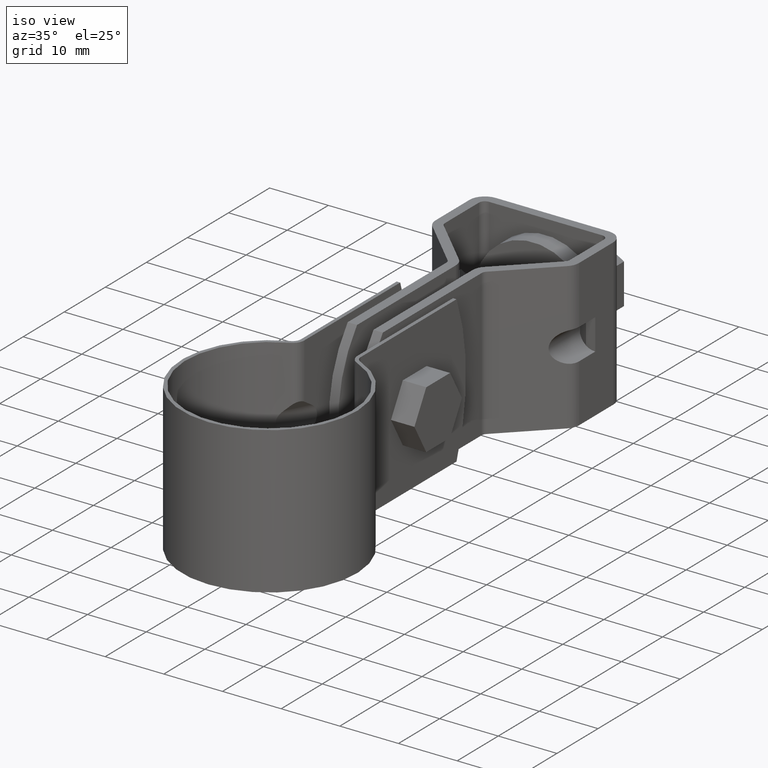
[diagram: clean part render]
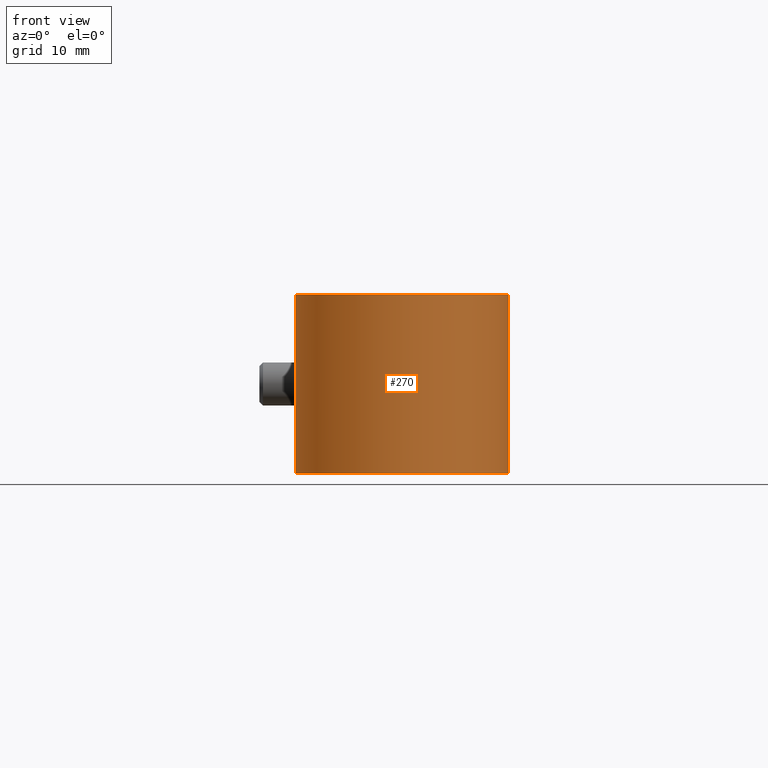
[diagram: tour spotlight — one face highlighted and labeled with its STEP entity id]
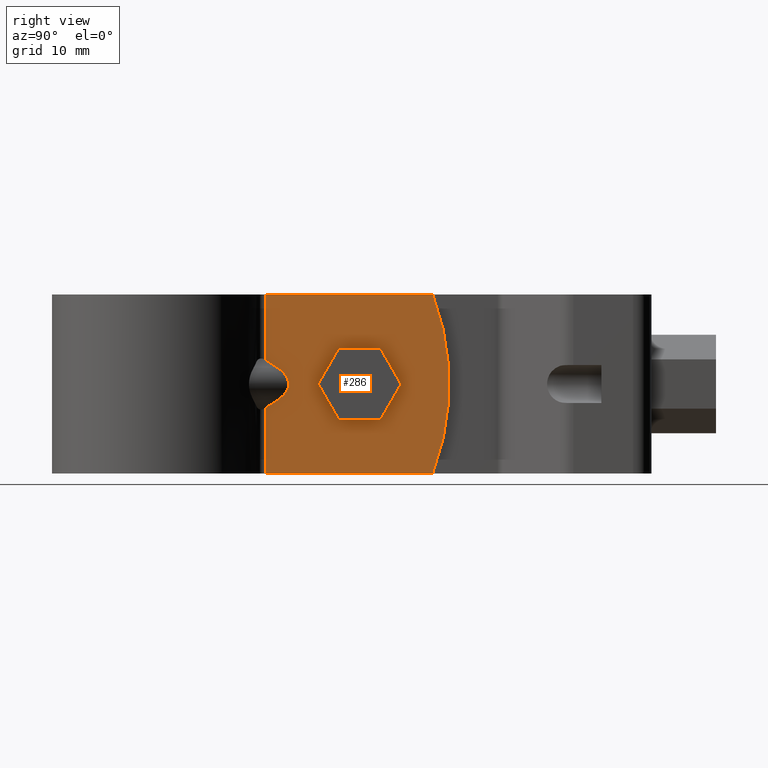
[diagram: tour spotlight — one face highlighted and labeled with its STEP entity id]
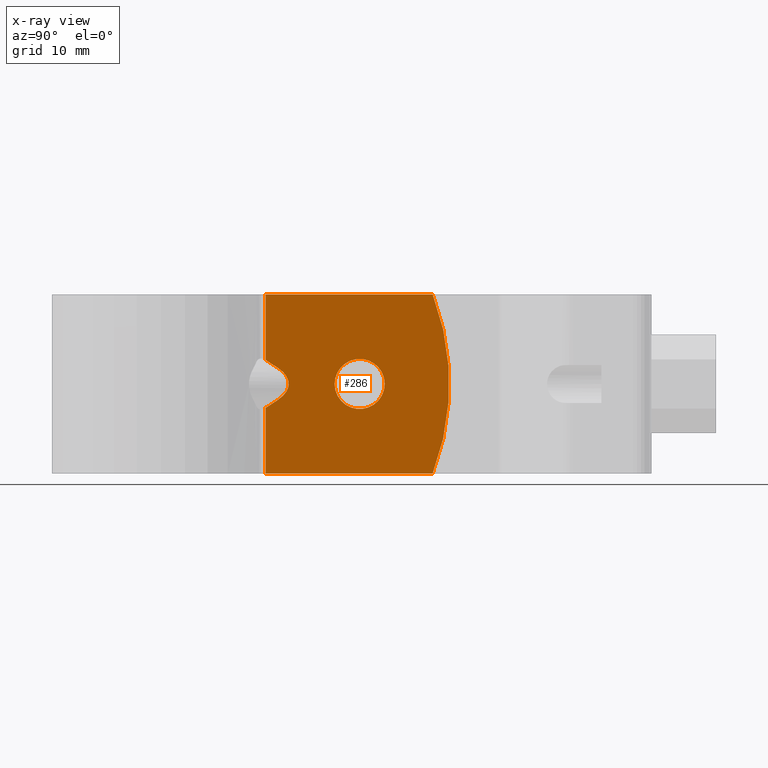
[diagram: x-ray of the same camera — body ghosted, this tour face saturated]
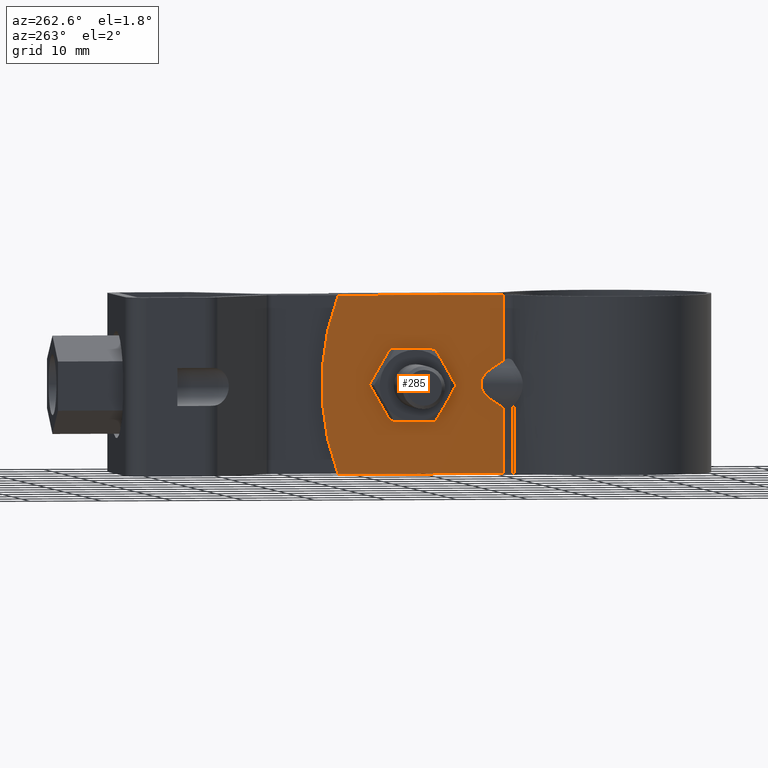
[diagram: tour spotlight — one face highlighted and labeled with its STEP entity id]
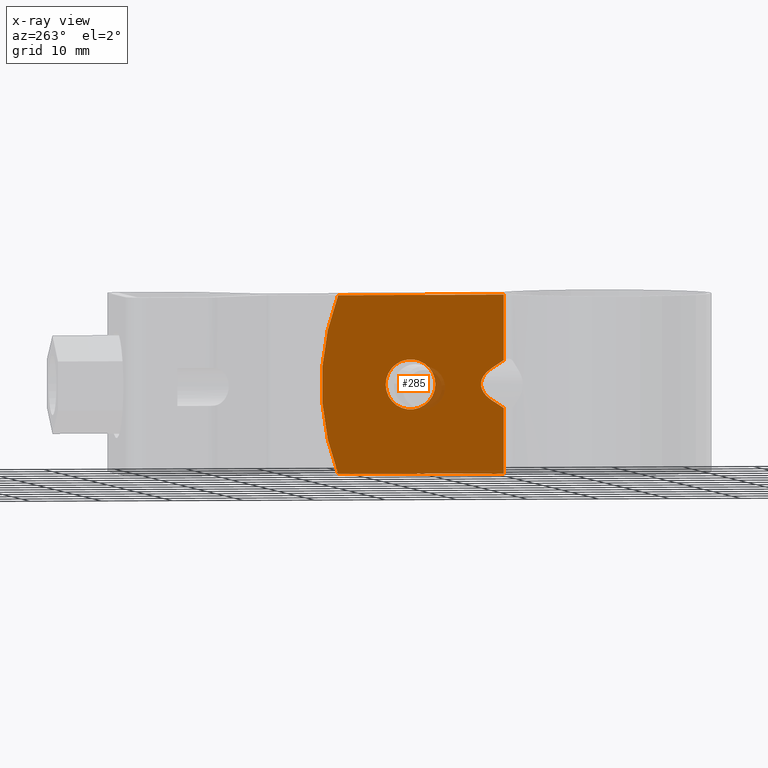
[diagram: x-ray of the same camera — body ghosted, this tour face saturated]
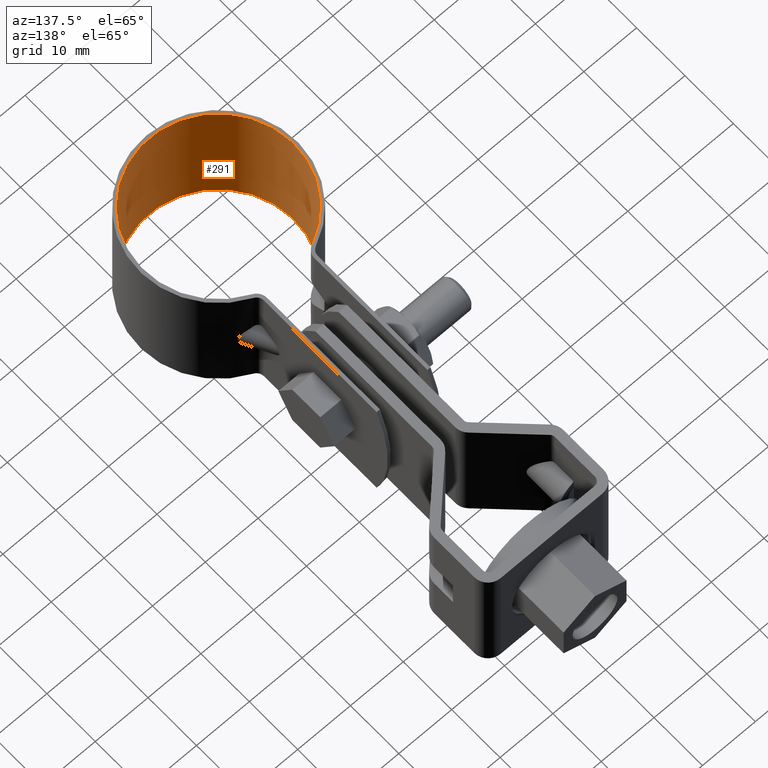
[diagram: tour spotlight — one face highlighted and labeled with its STEP entity id]
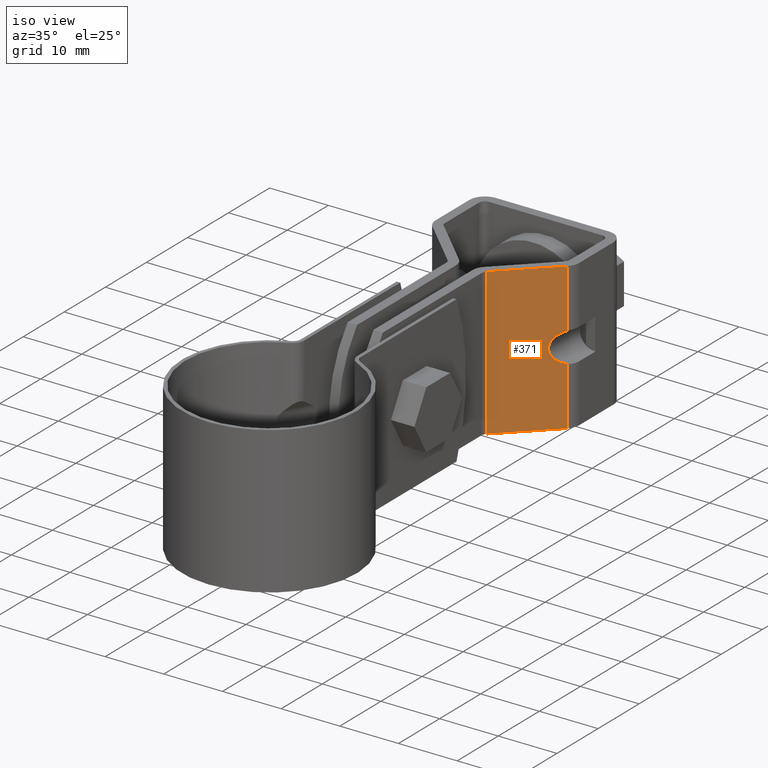
[diagram: tour spotlight — one face highlighted and labeled with its STEP entity id]
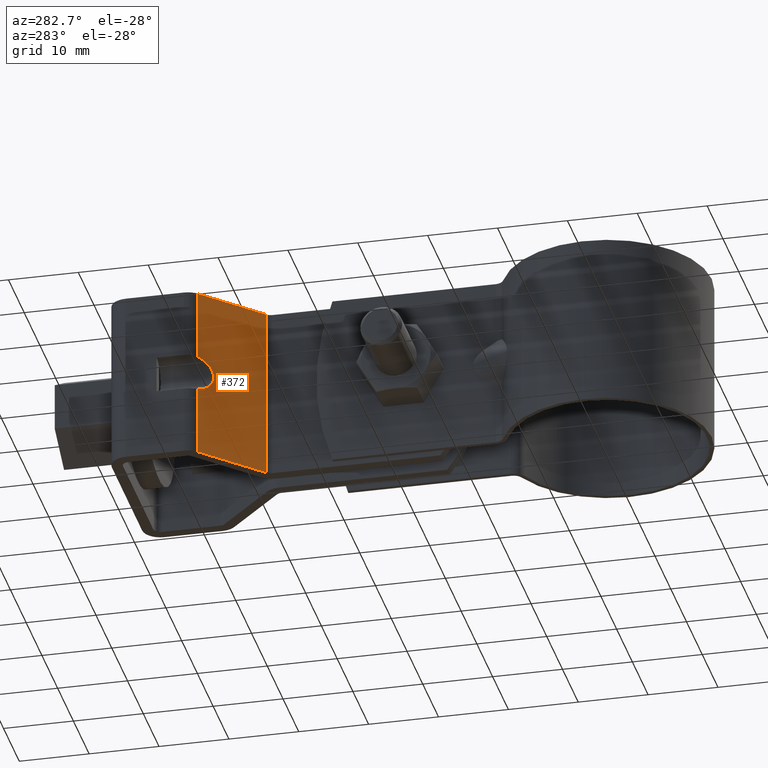
[diagram: tour spotlight — one face highlighted and labeled with its STEP entity id]
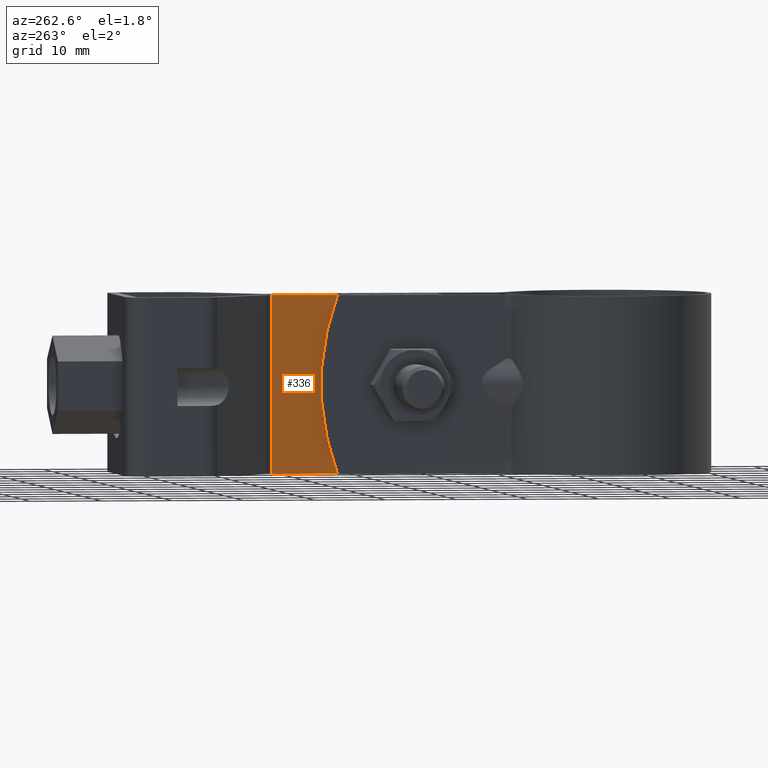
[diagram: tour spotlight — one face highlighted and labeled with its STEP entity id]
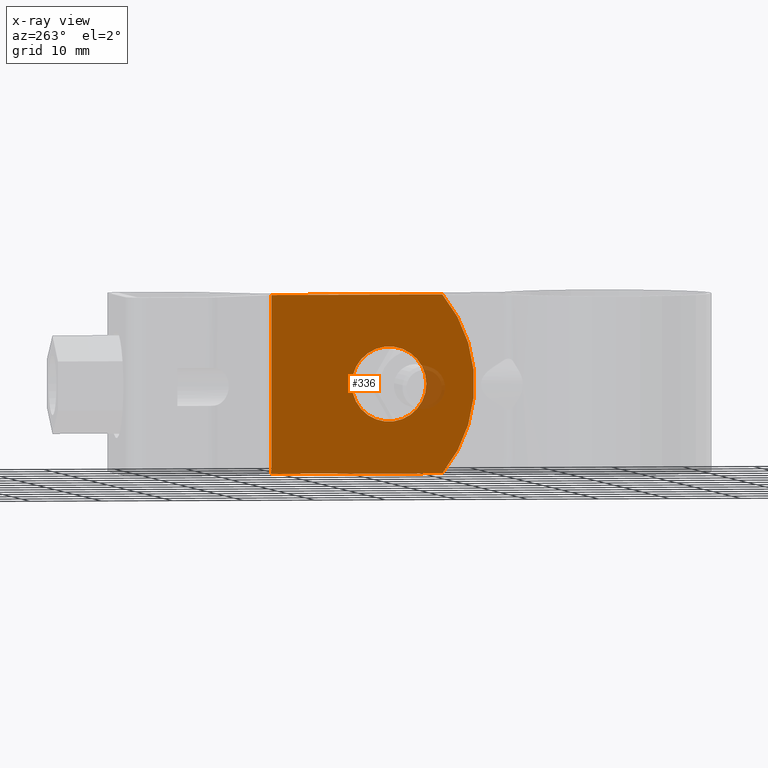
[diagram: x-ray of the same camera — body ghosted, this tour face saturated]
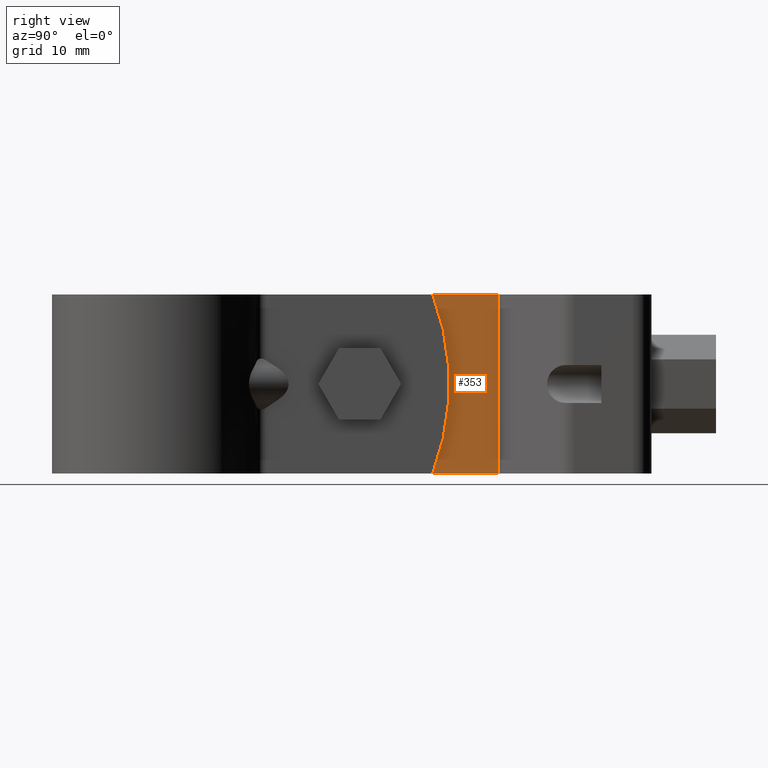
[diagram: tour spotlight — one face highlighted and labeled with its STEP entity id]
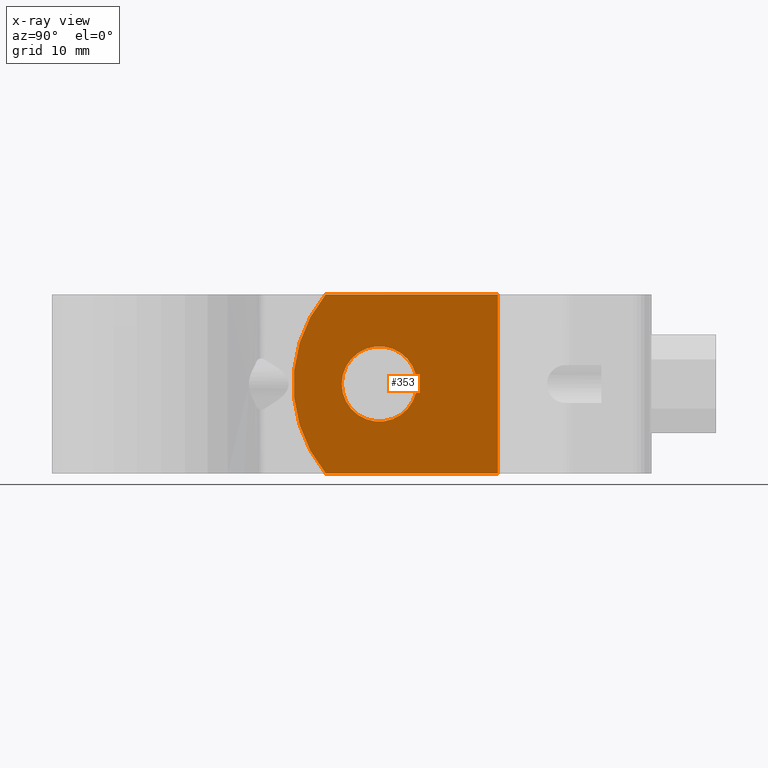
[diagram: x-ray of the same camera — body ghosted, this tour face saturated]
A machine part: a face-by-face anatomy tour. The part has 122 B-rep faces; the first image is the clean iso view, then the 8 largest visible faces are spotlighted one at a time (largest first), each with its STEP entity span.

Face 1 — front view, entity #270. In plain terms, the highlighted cylindrical surface (partial cylindrical patch) has radius 14.89 mm, axis along (0, 0, -1).
Definition (entity closure, byte-faithful):
#270 = ADVANCED_FACE( '', ( #396 ), #397, .T. );
#396 = FACE_OUTER_BOUND( '', #668, .T. );
#397 = CYLINDRICAL_SURFACE( '', #669, 14.8900000000000 );
#668 = EDGE_LOOP( '', ( #963, #964, #965, #966, #967, #968, #969, #970, #971, #972, #973, #974 ) );
#669 = AXIS2_PLACEMENT_3D( '', #975, #976, #977 );
#963 = ORIENTED_EDGE( '', *, *, #1953, .F. );
#964 = ORIENTED_EDGE( '', *, *, #1952, .T. );
#965 = ORIENTED_EDGE( '', *, *, #1954, .F. );
#966 = ORIENTED_EDGE( '', *, *, #1955, .F. );
#967 = ORIENTED_EDGE( '', *, *, #1956, .F. );
#968 = ORIENTED_EDGE( '', *, *, #1957, .F. );
#969 = ORIENTED_EDGE( '', *, *, #1958, .F. );
#970 = ORIENTED_EDGE( '', *, *, #1959, .F. );
#971 = ORIENTED_EDGE( '', *, *, #1941, .T. );
#972 = ORIENTED_EDGE( '', *, *, #1960, .T. );
#973 = ORIENTED_EDGE( '', *, *, #1961, .F. );
#974 = ORIENTED_EDGE( '', *, *, #1962, .F. );
#975 = CARTESIAN_POINT( '', ( 0.000000000000000, 0.000000000000000, -12.5000000000000 ) );
#976 = DIRECTION( '', ( 0.000000000000000, 0.000000000000000, -1.00000000000000 ) );
#977 = DIRECTION( '', ( -1.00000000000000, 6.06692130572647E-017, 0.000000000000000 ) );
#1941 = EDGE_CURVE( '', #2266, #2264, #2267, .T. );
#1952 = EDGE_CURVE( '', #2281, #2285, #2287, .T. );
#1953 = EDGE_CURVE( '', #2281, #2288, #2289, .F. );
#1954 = EDGE_CURVE( '', #2290, #2285, #2291, .T. );
#1955 = EDGE_CURVE( '', #2292, #2290, #2293, .T. );
#1956 = EDGE_CURVE( '', #2294, #2292, #2295, .F. );
#1957 = EDGE_CURVE( '', #2296, #2294, #2297, .T. );
#1958 = EDGE_CURVE( '', #2298, #2296, #2299, .F. );
#1959 = EDGE_CURVE( '', #2266, #2298, #2300, .T. );
#1960 = EDGE_CURVE( '', #2264, #2301, #2302, .T. );
#1961 = EDGE_CURVE( '', #2303, #2301, #2304, .F. );
#1962 = EDGE_CURVE( '', #2288, #2303, #2305, .T. );
#2264 = VERTEX_POINT( '', #2800 );
#2266 = VERTEX_POINT( '', #2802 );
#2267 = CIRCLE( '', #2803, 14.8900000000000 );
#2281 = VERTEX_POINT( '', #2821 );
#2285 = VERTEX_POINT( '', #2826 );
#2287 = LINE( '', #2828, #2829 );
#2288 = VERTEX_POINT( '', #2830 );
#2289 = ELLIPSE( '', #2831, 25.9599227867982, 14.8900000000000 );
#2290 = VERTEX_POINT( '', #2832 );
#2291 = CIRCLE( '', #2833, 14.8900000000000 );
#2292 = VERTEX_POINT( '', #2834 );
#2293 = LINE( '', #2835, #2836 );
#2294 = VERTEX_POINT( '', #2837 );
#2295 = ELLIPSE( '', #2838, 25.9599227867982, 14.8900000000000 );
#2296 = VERTEX_POINT( '', #2839 );
#2297 = B_SPLINE_CURVE_WITH_KNOTS( '', 3, ( #2840, #2841, #2842, #2843, #2844, #2845, #2846, #2847, #2848, #2849, #2850, #2851, #2852, #2853, #2854, #2855, #2856, #2857 ), .UNSPECIFIED., .F., .F., ( 4, 2, 2, 2, 2, 2, 2, 2, 4 ), ( 1.22663473334670E-018, 0.000680424414248581, 0.00136084882849716, 0.00204127324274574, 0.00272169765699432, 0.00340212207124290, 0.00408254648549148, 0.00476297089974006, 0.00544339531398864 ), .UNSPECIFIED. );
#2298 = VERTEX_POINT( '', #2858 );
#2299 = ELLIPSE( '', #2859, 25.9599227867981, 14.8900000000000 );
#2300 = LINE( '', #2860, #2861 );
#2301 = VERTEX_POINT( '', #2862 );
#2302 = LINE( '', #2863, #2864 );
#2303 = VERTEX_POINT( '', #2865 );
#2304 = ELLIPSE( '', #2866, 25.9599227867981, 14.8900000000000 );
#2305 = B_SPLINE_CURVE_WITH_KNOTS( '', 3, ( #2867, #2868, #2869, #2870, #2871, #2872, #2873, #2874, #2875, #2876, #2877, #2878, #2879, #2880, #2881, #2882, #2883, #2884, #2885, #2886 ), .UNSPECIFIED., .F., .F., ( 4, 2, 2, 2, 2, 2, 2, 2, 2, 4 ), ( 0.000000000000000, 0.000679638628458912, 0.00135927725691782, 0.00203891588537674, 0.00271855451383565, 0.00305837382806510, 0.00339819314229456, 0.00407783177075347, 0.00475747039921238, 0.00543710902767129 ), .UNSPECIFIED. );
#2800 = CARTESIAN_POINT( '', ( 5.94137507673420, 13.6532839345544, -12.5000000000000 ) );
#2802 = CARTESIAN_POINT( '', ( -5.94137507673419, 13.6532839345544, -12.5000000000000 ) );
#2803 = AXIS2_PLACEMENT_3D( '', #3688, #3689, #3690 );
#2821 = CARTESIAN_POINT( '', ( 5.94137507673420, 13.6532839345544, 3.10582604681296 ) );
#2826 = CARTESIAN_POINT( '', ( 5.94137507673420, 13.6532839345544, 12.5000000000000 ) );
#2828 = CARTESIAN_POINT( '', ( 5.94137507673420, 13.6532839345544, -12.5000000000000 ) );
#2829 = VECTOR( '', #3711, 1000.00000000000 );
#2830 = CARTESIAN_POINT( '', ( 6.78151181194868, 13.2560626712610, 2.29430574540416 ) );
#2831 = AXIS2_PLACEMENT_3D( '', #3712, #3713, #3714 );
#2832 = CARTESIAN_POINT( '', ( -5.94137507673420, 13.6532839345544, 12.5000000000000 ) );
#2833 = AXIS2_PLACEMENT_3D( '', #3715, #3716, #3717 );
#2834 = CARTESIAN_POINT( '', ( -5.94137507673420, 13.6532839345544, 3.10582604681296 ) );
#2835 = CARTESIAN_POINT( '', ( -5.94137507673420, 13.6532839345544, -12.5000000000000 ) );
#2836 = VECTOR( '', #3718, 1000.00000000000 );
#2837 = CARTESIAN_POINT( '', ( -6.78151181194868, 13.2560626712610, 2.29430574540416 ) );
#2838 = AXIS2_PLACEMENT_3D( '', #3719, #3720, #3721 );
#2839 = CARTESIAN_POINT( '', ( -6.78151181194866, 13.2560626712611, -2.29430574540419 ) );
#2840 = CARTESIAN_POINT( '', ( -6.78151181194868, 13.2560626712610, -2.29430574540421 ) );
#2841 = CARTESIAN_POINT( '', ( -6.93751466090581, 13.1762550248176, -2.14753834100919 ) );
#2842 = CARTESIAN_POINT( '', ( -7.08344164235556, 13.0981082713896, -1.99178012235953 ) );
#2843 = CARTESIAN_POINT( '', ( -7.35152905171580, 12.9495407791736, -1.65734997334812 ) );
#2844 = CARTESIAN_POINT( '', ( -7.47467893445725, 12.8785151938136, -1.47716974278923 ) );
#2845 = CARTESIAN_POINT( '', ( -7.68466266287117, 12.7543301873670, -1.09163327277356 ) );
#2846 = CARTESIAN_POINT( '', ( -7.77075630033370, 12.7016747253823, -0.888427473592780 ) );
#2847 = CARTESIAN_POINT( '', ( -7.89216601962584, 12.6265953379070, -0.452724835059774 ) );
#2848 = CARTESIAN_POINT( '', ( -7.92472194765010, 12.6059859622944, -0.227372808366124 ) );
#2849 = CARTESIAN_POINT( '', ( -7.92443295516349, 12.6061676320859, 0.230431196964999 ) );
#2850 = CARTESIAN_POINT( '', ( -7.89130715193910, 12.6271326253975, 0.456898733528781 ) );
#2851 = CARTESIAN_POINT( '', ( -7.76974185705234, 12.7022957917218, 0.890959323747129 ) );
#2852 = CARTESIAN_POINT( '', ( -7.68225392798807, 12.7557759790412, 1.09661576055200 ) );
#2853 = CARTESIAN_POINT( '', ( -7.47318867811233, 12.8793748770236, 1.47933536435769 ) );
#2854 = CARTESIAN_POINT( '', ( -7.34953380224073, 12.9506770278524, 1.66013891565063 ) );
#2855 = CARTESIAN_POINT( '', ( -7.08086837347808, 13.0995032603339, 1.99468510723603 ) );
#2856 = CARTESIAN_POINT( '', ( -6.93565324052198, 13.1772072867850, 2.14928956440055 ) );
#2857 = CARTESIAN_POINT( '', ( -6.78151181194868, 13.2560626712610, 2.29430574540415 ) );
#2858 = CARTESIAN_POINT( '', ( -5.94137507673420, 13.6532839345544, -3.10582604681300 ) );
#2859 = AXIS2_PLACEMENT_3D( '', #3722, #3723, #3724 );
#2860 = CARTESIAN_POINT( '', ( -5.94137507673420, 13.6532839345544, -12.5000000000000 ) );
#2861 = VECTOR( '', #3725, 1000.00000000000 );
#2862 = CARTESIAN_POINT( '', ( 5.94137507673420, 13.6532839345544, -3.10582604681300 ) );
#2863 = CARTESIAN_POINT( '', ( 5.94137507673420, 13.6532839345544, -12.5000000000000 ) );
#2864 = VECTOR( '', #3726, 1000.00000000000 );
#2865 = CARTESIAN_POINT( '', ( 6.78151181194866, 13.2560626712611, -2.29430574540419 ) );
#2866 = AXIS2_PLACEMENT_3D( '', #3727, #3728, #3729 );
#2867 = CARTESIAN_POINT( '', ( 6.78151181194868, 13.2560626712610, 2.29430574540416 ) );
#2868 = CARTESIAN_POINT( '', ( 6.93733450155337, 13.1763471904030, 2.14770783484025 ) );
#2869 = CARTESIAN_POINT( '', ( 7.08310424219975, 13.0982889973625, 1.99213948313857 ) );
#2870 = CARTESIAN_POINT( '', ( 7.35093755614544, 12.9498748028677, 1.65814916609281 ) );
#2871 = CARTESIAN_POINT( '', ( 7.47398344515693, 12.8789184357816, 1.47823350666047 ) );
#2872 = CARTESIAN_POINT( '', ( 7.68390254126887, 12.7547877422667, 1.09324058065952 ) );
#2873 = CARTESIAN_POINT( '', ( 7.77001583062047, 12.7021284133029, 0.890336552509822 ) );
#2874 = CARTESIAN_POINT( '', ( 7.89164274308365, 12.6269231031026, 0.455343210671177 ) );
#2875 = CARTESIAN_POINT( '', ( 7.92442237126661, 12.6061742854560, 0.230234105005796 ) );
#2876 = CARTESIAN_POINT( '', ( 7.92465488006649, 12.6060281230933, -0.112653084304653 ) );
#2877 = CARTESIAN_POINT( '', ( 7.91648407813854, 12.6111745748000, -0.227577240602229 ) );
#2878 = CARTESIAN_POINT( '', ( 7.88502774786633, 12.6308662304246, -0.451601441573954 ) );
#2879 = CARTESIAN_POINT( '', ( 7.86177017195947, 12.6453916594895, -0.561739409636078 ) );
#2880 = CARTESIAN_POINT( '', ( 7.77118356862313, 12.7014112513986, -0.887027558110734 ) );
#2881 = CARTESIAN_POINT( '', ( 7.68405187748147, 12.7546889826429, -1.09269052873267 ) );
#2882 = CARTESIAN_POINT( '', ( 7.47573138202849, 12.8778951930637, -1.47530144584968 ) );
#2883 = CARTESIAN_POINT( '', ( 7.35270028108238, 12.9488825898804, -1.65579903371912 ) );
#2884 = CARTESIAN_POINT( '', ( 7.08361817997110, 13.0980195155725, -1.99164931848076 ) );
#2885 = CARTESIAN_POINT( '', ( 6.93743976730353, 13.1762933387469, -2.14760880087377 ) );
#2886 = CARTESIAN_POINT( '', ( 6.78151181194869, 13.2560626712610, -2.29430574540421 ) );
#3688 = CARTESIAN_POINT( '', ( 0.000000000000000, 0.000000000000000, -12.5000000000000 ) );
#3689 = DIRECTION( '', ( 0.000000000000000, 0.000000000000000, 1.00000000000000 ) );
#3690 = DIRECTION( '', ( 1.00000000000000, 0.000000000000000, 0.000000000000000 ) );
#3711 = DIRECTION( '', ( 0.000000000000000, 0.000000000000000, 1.00000000000000 ) );
#3712 = CARTESIAN_POINT( '', ( 0.000000000000000, 0.000000000000000, 19.5184816173857 ) );
#3713 = DIRECTION( '', ( 0.729869815763731, 0.371887245949431, 0.573576436351046 ) );
#3714 = DIRECTION( '', ( -0.511060346909496, -0.260398252977840, 0.819152044288992 ) );
#3715 = CARTESIAN_POINT( '', ( 0.000000000000000, 0.000000000000000, 12.5000000000000 ) );
#3716 = DIRECTION( '', ( 0.000000000000000, 0.000000000000000, 1.00000000000000 ) );
#3717 = DIRECTION( '', ( 1.00000000000000, 0.000000000000000, 0.000000000000000 ) );
#3718 = DIRECTION( '', ( 0.000000000000000, 0.000000000000000, 1.00000000000000 ) );
#3719 = CARTESIAN_POINT( '', ( 0.000000000000000, 0.000000000000000, 19.5184816173857 ) );
#3720 = DIRECTION( '', ( -0.729869815763731, 0.371887245949431, 0.573576436351046 ) );
#3721 = DIRECTION( '', ( 0.511060346909496, -0.260398252977840, 0.819152044288992 ) );
#3722 = CARTESIAN_POINT( '', ( 0.000000000000000, 0.000000000000000, -19.5184816173858 ) );
#3723 = DIRECTION( '', ( -0.729869815763730, 0.371887245949432, -0.573576436351046 ) );
#3724 = DIRECTION( '', ( -0.511060346909496, 0.260398252977841, 0.819152044288992 ) );
#3725 = DIRECTION( '', ( 0.000000000000000, 0.000000000000000, 1.00000000000000 ) );
#3726 = DIRECTION( '', ( 0.000000000000000, 0.000000000000000, 1.00000000000000 ) );
#3727 = CARTESIAN_POINT( '', ( 0.000000000000000, 0.000000000000000, -19.5184816173858 ) );
#3728 = DIRECTION( '', ( 0.729869815763730, 0.371887245949432, -0.573576436351046 ) );
#3729 = DIRECTION( '', ( 0.511060346909496, 0.260398252977841, 0.819152044288992 ) );

Face 2 — right view, entity #286. An x-ray twin of the same camera follows (body ghosted, this face saturated) — the face is partly hidden behind the body. In plain terms, the highlighted planar face has unit normal (1, -0, 0).
Definition (entity closure, byte-faithful):
#286 = ADVANCED_FACE( '', ( #431, #432 ), #433, .T. );
#431 = FACE_OUTER_BOUND( '', #703, .T. );
#432 = FACE_BOUND( '', #704, .T. );
#433 = PLANE( '', #705 );
#703 = EDGE_LOOP( '', ( #1084, #1085, #1086, #1087, #1088, #1089, #1090, #1091 ) );
#704 = EDGE_LOOP( '', ( #1092 ) );
#705 = AXIS2_PLACEMENT_3D( '', #1093, #1094, #1095 );
#1084 = ORIENTED_EDGE( '', *, *, #1964, .F. );
#1085 = ORIENTED_EDGE( '', *, *, #2004, .F. );
#1086 = ORIENTED_EDGE( '', *, *, #2005, .F. );
#1087 = ORIENTED_EDGE( '', *, *, #2006, .F. );
#1088 = ORIENTED_EDGE( '', *, *, #1939, .T. );
#1089 = ORIENTED_EDGE( '', *, *, #1999, .T. );
#1090 = ORIENTED_EDGE( '', *, *, #2007, .F. );
#1091 = ORIENTED_EDGE( '', *, *, #1950, .F. );
#1092 = ORIENTED_EDGE( '', *, *, #1993, .T. );
#1093 = CARTESIAN_POINT( '', ( 5.10000000000000, 14.9370043850834, -12.5000000000000 ) );
#1094 = DIRECTION( '', ( 1.00000000000000, -6.06692130572647E-017, 0.000000000000000 ) );
#1095 = DIRECTION( '', ( 6.06692130572647E-017, 1.00000000000000, 0.000000000000000 ) );
#1939 = EDGE_CURVE( '', #2262, #2259, #2263, .T. );
#1950 = EDGE_CURVE( '', #2280, #2283, #2284, .T. );
#1964 = EDGE_CURVE( '', #2306, #2280, #2308, .T. );
#1993 = EDGE_CURVE( '', #2357, #2357, #2358, .F. );
#1999 = EDGE_CURVE( '', #2259, #2367, #2369, .T. );
#2004 = EDGE_CURVE( '', #2375, #2306, #2376, .T. );
#2005 = EDGE_CURVE( '', #2377, #2375, #2378, .T. );
#2006 = EDGE_CURVE( '', #2262, #2377, #2379, .T. );
#2007 = EDGE_CURVE( '', #2283, #2367, #2380, .T. );
#2259 = VERTEX_POINT( '', #2793 );
#2262 = VERTEX_POINT( '', #2797 );
#2263 = LINE( '', #2798, #2799 );
#2280 = VERTEX_POINT( '', #2820 );
#2283 = VERTEX_POINT( '', #2823 );
#2284 = LINE( '', #2824, #2825 );
#2306 = VERTEX_POINT( '', #2887 );
#2308 = LINE( '', #2890, #2891 );
#2357 = VERTEX_POINT( '', #2986 );
#2358 = CIRCLE( '', #2987, 3.50000000000000 );
#2367 = VERTEX_POINT( '', #2997 );
#2369 = CIRCLE( '', #3000, 35.0000000000000 );
#2375 = VERTEX_POINT( '', #3009 );
#2376 = ELLIPSE( '', #3010, 8.81075705834106, 4.00000000000000 );
#2377 = VERTEX_POINT( '', #3011 );
#2378 = LINE( '', #3012, #3013 );
#2379 = LINE( '', #3014, #3015 );
#2380 = LINE( '', #3016, #3017 );
#2793 = CARTESIAN_POINT( '', ( 5.10000000000000, 38.2547100408319, -12.5000000000000 ) );
#2797 = CARTESIAN_POINT( '', ( 5.10000000000000, 14.9370043850834, -12.5000000000000 ) );
#2798 = CARTESIAN_POINT( '', ( 5.10000000000000, 14.9370043850834, -12.5000000000000 ) );
#2799 = VECTOR( '', #3684, 1000.00000000000 );
#2820 = CARTESIAN_POINT( '', ( 5.10000000000000, 14.9370043850834, 3.34414652280326 ) );
#2823 = CARTESIAN_POINT( '', ( 5.10000000000000, 14.9370043850834, 12.5000000000000 ) );
#2824 = CARTESIAN_POINT( '', ( 5.10000000000000, 14.9370043850834, -12.5000000000000 ) );
#2825 = VECTOR( '', #3707, 1000.00000000000 );
#2887 = CARTESIAN_POINT( '', ( 5.10000000000000, 16.5562154185225, 2.29430574540416 ) );
#2890 = CARTESIAN_POINT( '', ( 5.10000000000000, 22.1694453941886, -1.34511962885171 ) );
#2891 = VECTOR( '', #3731, 1000.00000000000 );
#2986 = CARTESIAN_POINT( '', ( 5.10000000000000, 31.5629679642768, -8.67361737988404E-016 ) );
#2987 = AXIS2_PLACEMENT_3D( '', #3786, #3787, #3788 );
#2997 = CARTESIAN_POINT( '', ( 5.10000000000000, 38.2547100408319, 12.5000000000000 ) );
#3000 = AXIS2_PLACEMENT_3D( '', #3800, #3801, #3802 );
#3009 = CARTESIAN_POINT( '', ( 5.10000000000000, 16.5562154185225, -2.29430574540419 ) );
#3010 = AXIS2_PLACEMENT_3D( '', #3809, #3810, #3811 );
#3011 = CARTESIAN_POINT( '', ( 5.10000000000000, 14.9370043850834, -3.34414652280331 ) );
#3012 = CARTESIAN_POINT( '', ( 5.10000000000000, 10.7575952849131, -6.05393172570705 ) );
#3013 = VECTOR( '', #3812, 1000.00000000000 );
#3014 = CARTESIAN_POINT( '', ( 5.10000000000000, 14.9370043850834, -12.5000000000000 ) );
#3015 = VECTOR( '', #3813, 1000.00000000000 );
#3016 = CARTESIAN_POINT( '', ( 5.10000000000000, 14.9370043850834, 12.5000000000000 ) );
#3017 = VECTOR( '', #3814, 1000.00000000000 );
#3684 = DIRECTION( '', ( 6.06692130572647E-017, 1.00000000000000, 0.000000000000000 ) );
#3707 = DIRECTION( '', ( 0.000000000000000, 0.000000000000000, 1.00000000000000 ) );
#3731 = DIRECTION( '', ( -5.09056978337516E-017, -0.839069690679893, 0.544023946331730 ) );
#3786 = CARTESIAN_POINT( '', ( 5.10000000000000, 28.0629679642768, -8.67361737988404E-016 ) );
#3787 = DIRECTION( '', ( 1.00000000000000, -6.06692130572647E-017, 0.000000000000000 ) );
#3788 = DIRECTION( '', ( 6.06692130572647E-017, 1.00000000000000, 0.000000000000000 ) );
#3800 = CARTESIAN_POINT( '', ( 5.10000000000000, 5.56296796427682, 1.38777878078145E-014 ) );
#3801 = DIRECTION( '', ( 1.00000000000000, -6.06692130572647E-017, 0.000000000000000 ) );
#3802 = DIRECTION( '', ( 6.06692130572647E-017, 1.00000000000000, 0.000000000000000 ) );
#3809 = CARTESIAN_POINT( '', ( 5.10000000000000, 9.33886576244878, -2.90158203424360E-014 ) );
#3810 = DIRECTION( '', ( 1.00000000000000, -6.06692130572647E-017, 0.000000000000000 ) );
#3811 = DIRECTION( '', ( 6.06692130572647E-017, 1.00000000000000, 9.96825944130074E-016 ) );
#3812 = DIRECTION( '', ( 8.05405233250115E-017, 0.839069690679892, 0.544023946331730 ) );
#3813 = DIRECTION( '', ( 0.000000000000000, 0.000000000000000, 1.00000000000000 ) );
#3814 = DIRECTION( '', ( 6.06692130572647E-017, 1.00000000000000, 0.000000000000000 ) );

Face 3 — auxiliary view, entity #285. An x-ray twin of the same camera follows (body ghosted, this face saturated) — the face is partly hidden behind the body. In plain terms, the highlighted planar face has unit normal (-1, 0, 0).
Definition (entity closure, byte-faithful):
#285 = ADVANCED_FACE( '', ( #428, #429 ), #430, .T. );
#428 = FACE_OUTER_BOUND( '', #700, .T. );
#429 = FACE_BOUND( '', #701, .T. );
#430 = PLANE( '', #702 );
#700 = EDGE_LOOP( '', ( #1072, #1073, #1074, #1075, #1076, #1077, #1078, #1079 ) );
#701 = EDGE_LOOP( '', ( #1080 ) );
#702 = AXIS2_PLACEMENT_3D( '', #1081, #1082, #1083 );
#1072 = ORIENTED_EDGE( '', *, *, #1971, .F. );
#1073 = ORIENTED_EDGE( '', *, *, #2001, .T. );
#1074 = ORIENTED_EDGE( '', *, *, #2002, .F. );
#1075 = ORIENTED_EDGE( '', *, *, #1995, .T. );
#1076 = ORIENTED_EDGE( '', *, *, #1943, .T. );
#1077 = ORIENTED_EDGE( '', *, *, #2003, .T. );
#1078 = ORIENTED_EDGE( '', *, *, #1968, .F. );
#1079 = ORIENTED_EDGE( '', *, *, #1966, .F. );
#1080 = ORIENTED_EDGE( '', *, *, #1991, .T. );
#1081 = CARTESIAN_POINT( '', ( -5.10000000000000, 40.5629679642768, -12.5000000000000 ) );
#1082 = DIRECTION( '', ( -1.00000000000000, 6.06692130572647E-017, 0.000000000000000 ) );
#1083 = DIRECTION( '', ( -6.06692130572647E-017, -1.00000000000000, 0.000000000000000 ) );
#1943 = EDGE_CURVE( '', #2270, #2268, #2271, .T. );
#1966 = EDGE_CURVE( '', #2309, #2311, #2312, .T. );
#1968 = EDGE_CURVE( '', #2311, #2314, #2315, .T. );
#1971 = EDGE_CURVE( '', #2317, #2309, #2319, .T. );
#1991 = EDGE_CURVE( '', #2353, #2353, #2354, .F. );
#1995 = EDGE_CURVE( '', #2361, #2270, #2362, .T. );
#2001 = EDGE_CURVE( '', #2317, #2371, #2372, .T. );
#2002 = EDGE_CURVE( '', #2361, #2371, #2373, .T. );
#2003 = EDGE_CURVE( '', #2268, #2314, #2374, .T. );
#2268 = VERTEX_POINT( '', #2804 );
#2270 = VERTEX_POINT( '', #2806 );
#2271 = LINE( '', #2807, #2808 );
#2309 = VERTEX_POINT( '', #2892 );
#2311 = VERTEX_POINT( '', #2895 );
#2312 = ELLIPSE( '', #2896, 8.81075705834106, 4.00000000000000 );
#2314 = VERTEX_POINT( '', #2899 );
#2315 = LINE( '', #2900, #2901 );
#2317 = VERTEX_POINT( '', #2903 );
#2319 = LINE( '', #2905, #2906 );
#2353 = VERTEX_POINT( '', #2982 );
#2354 = CIRCLE( '', #2983, 3.50000000000000 );
#2361 = VERTEX_POINT( '', #2990 );
#2362 = CIRCLE( '', #2991, 35.0000000000000 );
#2371 = VERTEX_POINT( '', #3002 );
#2372 = LINE( '', #3003, #3004 );
#2373 = LINE( '', #3005, #3006 );
#2374 = LINE( '', #3007, #3008 );
#2804 = CARTESIAN_POINT( '', ( -5.10000000000000, 14.9370043850834, -12.5000000000000 ) );
#2806 = CARTESIAN_POINT( '', ( -5.10000000000000, 38.2547100408319, -12.5000000000000 ) );
#2807 = CARTESIAN_POINT( '', ( -5.10000000000000, 40.5629679642768, -12.5000000000000 ) );
#2808 = VECTOR( '', #3694, 1000.00000000000 );
#2892 = CARTESIAN_POINT( '', ( -5.10000000000000, 16.5562154185225, 2.29430574540416 ) );
#2895 = CARTESIAN_POINT( '', ( -5.10000000000000, 16.5562154185225, -2.29430574540419 ) );
#2896 = AXIS2_PLACEMENT_3D( '', #3733, #3734, #3735 );
#2899 = CARTESIAN_POINT( '', ( -5.10000000000000, 14.9370043850834, -3.34414652280332 ) );
#2900 = CARTESIAN_POINT( '', ( -5.10000000000000, 28.7992460428064, 5.64365448515328 ) );
#2901 = VECTOR( '', #3737, 1000.00000000000 );
#2903 = CARTESIAN_POINT( '', ( -5.10000000000000, 14.9370043850834, 3.34414652280328 ) );
#2905 = CARTESIAN_POINT( '', ( -5.10000000000000, 40.2110961520819, -13.0427058397120 ) );
#2906 = VECTOR( '', #3744, 1000.00000000000 );
#2982 = CARTESIAN_POINT( '', ( -5.10000000000000, 24.5629679642768, -8.67361737988404E-016 ) );
#2983 = AXIS2_PLACEMENT_3D( '', #3780, #3781, #3782 );
#2990 = CARTESIAN_POINT( '', ( -5.10000000000000, 38.2547100408319, 12.5000000000000 ) );
#2991 = AXIS2_PLACEMENT_3D( '', #3792, #3793, #3794 );
#3002 = CARTESIAN_POINT( '', ( -5.10000000000000, 14.9370043850834, 12.5000000000000 ) );
#3003 = CARTESIAN_POINT( '', ( -5.10000000000000, 14.9370043850834, -12.5000000000000 ) );
#3004 = VECTOR( '', #3806, 1000.00000000000 );
#3005 = CARTESIAN_POINT( '', ( -5.10000000000000, 40.5629679642768, 12.5000000000000 ) );
#3006 = VECTOR( '', #3807, 1000.00000000000 );
#3007 = CARTESIAN_POINT( '', ( -5.10000000000000, 14.9370043850834, -12.5000000000000 ) );
#3008 = VECTOR( '', #3808, 1000.00000000000 );
#3694 = DIRECTION( '', ( -6.06692130572647E-017, -1.00000000000000, 0.000000000000000 ) );
#3733 = CARTESIAN_POINT( '', ( -5.10000000000000, 9.33886576244878, -2.90158203424360E-014 ) );
#3734 = DIRECTION( '', ( -1.00000000000000, 6.06692130572647E-017, 0.000000000000000 ) );
#3735 = DIRECTION( '', ( 6.06692130572647E-017, 1.00000000000000, 9.96825944130074E-016 ) );
#3737 = DIRECTION( '', ( -5.09056978337516E-017, -0.839069690679893, -0.544023946331730 ) );
#3744 = DIRECTION( '', ( 5.09056978337516E-017, 0.839069690679893, -0.544023946331730 ) );
#3780 = CARTESIAN_POINT( '', ( -5.10000000000000, 28.0629679642768, -8.67361737988404E-016 ) );
#3781 = DIRECTION( '', ( -1.00000000000000, 6.06692130572647E-017, 0.000000000000000 ) );
#3782 = DIRECTION( '', ( -6.06692130572647E-017, -1.00000000000000, 0.000000000000000 ) );
#3792 = CARTESIAN_POINT( '', ( -5.10000000000000, 5.56296796427682, 1.38777878078145E-014 ) );
#3793 = DIRECTION( '', ( -1.00000000000000, 6.06692130572647E-017, 0.000000000000000 ) );
#3794 = DIRECTION( '', ( -6.06692130572647E-017, -1.00000000000000, 0.000000000000000 ) );
#3806 = DIRECTION( '', ( 0.000000000000000, 0.000000000000000, 1.00000000000000 ) );
#3807 = DIRECTION( '', ( -6.06692130572647E-017, -1.00000000000000, 0.000000000000000 ) );
#3808 = DIRECTION( '', ( 0.000000000000000, 0.000000000000000, 1.00000000000000 ) );

Face 4 — auxiliary view, entity #291. In plain terms, the highlighted cylindrical surface (partial cylindrical patch) has radius 14.29 mm, axis along (0, 0, -1).
Definition (entity closure, byte-faithful):
#291 = ADVANCED_FACE( '', ( #443 ), #444, .F. );
#443 = FACE_OUTER_BOUND( '', #715, .T. );
#444 = CYLINDRICAL_SURFACE( '', #716, 14.2900000000000 );
#715 = EDGE_LOOP( '', ( #1129, #1130, #1131, #1132, #1133, #1134, #1135, #1136, #1137, #1138, #1139, #1140 ) );
#716 = AXIS2_PLACEMENT_3D( '', #1141, #1142, #1143 );
#1129 = ORIENTED_EDGE( '', *, *, #1976, .F. );
#1130 = ORIENTED_EDGE( '', *, *, #1937, .F. );
#1131 = ORIENTED_EDGE( '', *, *, #1947, .F. );
#1132 = ORIENTED_EDGE( '', *, *, #2013, .T. );
#1133 = ORIENTED_EDGE( '', *, *, #1986, .T. );
#1134 = ORIENTED_EDGE( '', *, *, #1989, .T. );
#1135 = ORIENTED_EDGE( '', *, *, #1981, .T. );
#1136 = ORIENTED_EDGE( '', *, *, #2014, .T. );
#1137 = ORIENTED_EDGE( '', *, *, #2015, .T. );
#1138 = ORIENTED_EDGE( '', *, *, #2011, .F. );
#1139 = ORIENTED_EDGE( '', *, *, #1973, .F. );
#1140 = ORIENTED_EDGE( '', *, *, #1979, .F. );
#1141 = CARTESIAN_POINT( '', ( 0.000000000000000, 0.000000000000000, -12.5000000000000 ) );
#1142 = DIRECTION( '', ( 0.000000000000000, 0.000000000000000, -1.00000000000000 ) );
#1143 = DIRECTION( '', ( -1.00000000000000, 6.06692130572647E-017, 0.000000000000000 ) );
#1937 = EDGE_CURVE( '', #2256, #2252, #2258, .T. );
#1947 = EDGE_CURVE( '', #2276, #2256, #2278, .T. );
#1973 = EDGE_CURVE( '', #2320, #2323, #2324, .F. );
#1976 = EDGE_CURVE( '', #2252, #2328, #2329, .F. );
#1979 = EDGE_CURVE( '', #2328, #2320, #2333, .T. );
#1981 = EDGE_CURVE( '', #2335, #2336, #2337, .F. );
#1986 = EDGE_CURVE( '', #2346, #2343, #2347, .F. );
#1989 = EDGE_CURVE( '', #2343, #2335, #2351, .T. );
#2011 = EDGE_CURVE( '', #2323, #2385, #2386, .T. );
#2013 = EDGE_CURVE( '', #2276, #2346, #2388, .T. );
#2014 = EDGE_CURVE( '', #2336, #2389, #2390, .T. );
#2015 = EDGE_CURVE( '', #2389, #2385, #2391, .T. );
#2252 = VERTEX_POINT( '', #2784 );
#2256 = VERTEX_POINT( '', #2789 );
#2258 = LINE( '', #2791, #2792 );
#2276 = VERTEX_POINT( '', #2815 );
#2278 = CIRCLE( '', #2817, 14.2900000000000 );
#2320 = VERTEX_POINT( '', #2907 );
#2323 = VERTEX_POINT( '', #2911 );
#2324 = ELLIPSE( '', #2912, 24.9138547094255, 14.2900000000000 );
#2328 = VERTEX_POINT( '', #2917 );
#2329 = ELLIPSE( '', #2918, 24.9138547094255, 14.2900000000000 );
#2333 = B_SPLINE_CURVE_WITH_KNOTS( '', 3, ( #2924, #2925, #2926, #2927, #2928, #2929, #2930, #2931, #2932, #2933, #2934, #2935, #2936, #2937, #2938, #2939, #2940, #2941 ), .UNSPECIFIED., .F., .F., ( 4, 2, 2, 2, 2, 2, 2, 2, 4 ), ( 9.85133562538035E-018, 0.000576431288331446, 0.00115286257666288, 0.00172929386499432, 0.00230572515332576, 0.00288215644165719, 0.00345858772998863, 0.00403501901832006, 0.00461145030665150 ), .UNSPECIFIED. );
#2335 = VERTEX_POINT( '', #2943 );
#2336 = VERTEX_POINT( '', #2944 );
#2337 = ELLIPSE( '', #2945, 24.9138547094255, 14.2900000000000 );
#2343 = VERTEX_POINT( '', #2953 );
#2346 = VERTEX_POINT( '', #2957 );
#2347 = ELLIPSE( '', #2958, 24.9138547094255, 14.2900000000000 );
#2351 = B_SPLINE_CURVE_WITH_KNOTS( '', 3, ( #2963, #2964, #2965, #2966, #2967, #2968, #2969, #2970, #2971, #2972, #2973, #2974, #2975, #2976, #2977, #2978, #2979, #2980 ), .UNSPECIFIED., .F., .F., ( 4, 2, 2, 2, 2, 2, 2, 2, 4 ), ( 9.85133562538035E-018, 0.000576431288331446, 0.00115286257666288, 0.00172929386499432, 0.00230572515332576, 0.00288215644165719, 0.00345858772998863, 0.00403501901832006, 0.00461145030665150 ), .UNSPECIFIED. );
#2385 = VERTEX_POINT( '', #3024 );
#2386 = LINE( '', #3025, #3026 );
#2388 = LINE( '', #3028, #3029 );
#2389 = VERTEX_POINT( '', #3030 );
#2390 = LINE( '', #3031, #3032 );
#2391 = CIRCLE( '', #3033, 14.2900000000000 );
#2784 = CARTESIAN_POINT( '', ( 5.70196439533456, 13.1031180271849, -2.72111413749569 ) );
#2789 = CARTESIAN_POINT( '', ( 5.70196439533457, 13.1031180271849, -12.5000000000000 ) );
#2791 = CARTESIAN_POINT( '', ( 5.70196439533457, 13.1031180271849, -12.5000000000000 ) );
#2792 = VECTOR( '', #3682, 1000.00000000000 );
#2815 = CARTESIAN_POINT( '', ( -5.70196439533457, 13.1031180271849, -12.5000000000000 ) );
#2817 = AXIS2_PLACEMENT_3D( '', #3700, #3701, #3702 );
#2907 = CARTESIAN_POINT( '', ( 6.49988941810359, 12.7261752915959, 1.95015988359353 ) );
#2911 = CARTESIAN_POINT( '', ( 5.70196439533457, 13.1031180271849, 2.72111413749562 ) );
#2912 = AXIS2_PLACEMENT_3D( '', #3746, #3747, #3748 );
#2917 = CARTESIAN_POINT( '', ( 6.49988941810357, 12.7261752915959, -1.95015988359356 ) );
#2918 = AXIS2_PLACEMENT_3D( '', #3753, #3754, #3755 );
#2924 = CARTESIAN_POINT( '', ( 6.49988941810360, 12.7261752915959, -1.95015988359358 ) );
#2925 = CARTESIAN_POINT( '', ( 6.63205671267864, 12.6586708937903, -1.82574596100280 ) );
#2926 = CARTESIAN_POINT( '', ( 6.75566318585809, 12.5929287970367, -1.69355071350215 ) );
#2927 = CARTESIAN_POINT( '', ( 6.98257753204186, 12.4685384779860, -1.40941769995785 ) );
#2928 = CARTESIAN_POINT( '', ( 7.08675224617282, 12.4093727447253, -1.25611259648815 ) );
#2929 = CARTESIAN_POINT( '', ( 7.26389266781130, 12.3065207360441, -0.928511844791345 ) );
#2930 = CARTESIAN_POINT( '', ( 7.33634109850308, 12.2631869955853, -0.755880557141016 ) );
#2931 = CARTESIAN_POINT( '', ( 7.43843246450547, 12.2015318084767, -0.386291922830639 ) );
#2932 = CARTESIAN_POINT( '', ( 7.46580889494389, 12.1846541835323, -0.195256724245402 ) );
#2933 = CARTESIAN_POINT( '', ( 7.46609473214270, 12.1844790401053, 0.192182301101868 ) );
#2934 = CARTESIAN_POINT( '', ( 7.43868739059594, 12.2013739641690, 0.384550983514512 ) );
#2935 = CARTESIAN_POINT( '', ( 7.33745417134496, 12.2625186235098, 0.752658143786667 ) );
#2936 = CARTESIAN_POINT( '', ( 7.26400387271713, 12.3064487434012, 0.928076099651228 ) );
#2937 = CARTESIAN_POINT( '', ( 7.08819527315452, 12.4085422474375, 1.25367194546658 ) );
#2938 = CARTESIAN_POINT( '', ( 6.98425311637846, 12.4676070946582, 1.40717267300716 ) );
#2939 = CARTESIAN_POINT( '', ( 6.75614981265994, 12.5926747742212, 1.69308692108685 ) );
#2940 = CARTESIAN_POINT( '', ( 6.63215457865531, 12.6586209087781, 1.82565383616895 ) );
#2941 = CARTESIAN_POINT( '', ( 6.49988941810360, 12.7261752915959, 1.95015988359353 ) );
#2943 = CARTESIAN_POINT( '', ( -6.49988941810359, 12.7261752915959, 1.95015988359353 ) );
#2944 = CARTESIAN_POINT( '', ( -5.70196439533457, 13.1031180271849, 2.72111413749561 ) );
#2945 = AXIS2_PLACEMENT_3D( '', #3761, #3762, #3763 );
#2953 = CARTESIAN_POINT( '', ( -6.49988941810357, 12.7261752915959, -1.95015988359356 ) );
#2957 = CARTESIAN_POINT( '', ( -5.70196439533456, 13.1031180271849, -2.72111413749569 ) );
#2958 = AXIS2_PLACEMENT_3D( '', #3770, #3771, #3772 );
#2963 = CARTESIAN_POINT( '', ( -6.49988941810360, 12.7261752915959, -1.95015988359358 ) );
#2964 = CARTESIAN_POINT( '', ( -6.63205671267864, 12.6586708937903, -1.82574596100280 ) );
#2965 = CARTESIAN_POINT( '', ( -6.75566318585809, 12.5929287970367, -1.69355071350215 ) );
#2966 = CARTESIAN_POINT( '', ( -6.98257753204186, 12.4685384779860, -1.40941769995785 ) );
#2967 = CARTESIAN_POINT( '', ( -7.08675224617282, 12.4093727447253, -1.25611259648815 ) );
#2968 = CARTESIAN_POINT( '', ( -7.26389266781130, 12.3065207360441, -0.928511844791345 ) );
#2969 = CARTESIAN_POINT( '', ( -7.33634109850308, 12.2631869955853, -0.755880557141016 ) );
#2970 = CARTESIAN_POINT( '', ( -7.43843246450547, 12.2015318084767, -0.386291922830639 ) );
#2971 = CARTESIAN_POINT( '', ( -7.46580889494389, 12.1846541835323, -0.195256724245402 ) );
#2972 = CARTESIAN_POINT( '', ( -7.46609473214270, 12.1844790401053, 0.192182301101868 ) );
#2973 = CARTESIAN_POINT( '', ( -7.43868739059594, 12.2013739641690, 0.384550983514512 ) );
#2974 = CARTESIAN_POINT( '', ( -7.33745417134496, 12.2625186235098, 0.752658143786667 ) );
#2975 = CARTESIAN_POINT( '', ( -7.26400387271713, 12.3064487434012, 0.928076099651228 ) );
#2976 = CARTESIAN_POINT( '', ( -7.08819527315452, 12.4085422474375, 1.25367194546658 ) );
#2977 = CARTESIAN_POINT( '', ( -6.98425311637846, 12.4676070946582, 1.40717267300716 ) );
#2978 = CARTESIAN_POINT( '', ( -6.75614981265994, 12.5926747742212, 1.69308692108685 ) );
#2979 = CARTESIAN_POINT( '', ( -6.63215457865531, 12.6586209087781, 1.82565383616895 ) );
#2980 = CARTESIAN_POINT( '', ( -6.49988941810360, 12.7261752915959, 1.95015988359353 ) );
#3024 = CARTESIAN_POINT( '', ( 5.70196439533457, 13.1031180271849, 12.5000000000000 ) );
#3025 = CARTESIAN_POINT( '', ( 5.70196439533457, 13.1031180271849, -12.5000000000000 ) );
#3026 = VECTOR( '', #3820, 1000.00000000000 );
#3028 = CARTESIAN_POINT( '', ( -5.70196439533457, 13.1031180271849, -12.5000000000000 ) );
#3029 = VECTOR( '', #3824, 1000.00000000000 );
#3030 = CARTESIAN_POINT( '', ( -5.70196439533457, 13.1031180271849, 12.5000000000000 ) );
#3031 = CARTESIAN_POINT( '', ( -5.70196439533457, 13.1031180271849, -12.5000000000000 ) );
#3032 = VECTOR( '', #3825, 1000.00000000000 );
#3033 = AXIS2_PLACEMENT_3D( '', #3826, #3827, #3828 );
#3682 = DIRECTION( '', ( 0.000000000000000, 0.000000000000000, 1.00000000000000 ) );
#3700 = CARTESIAN_POINT( '', ( 0.000000000000000, 0.000000000000000, -12.5000000000000 ) );
#3701 = DIRECTION( '', ( 0.000000000000000, 0.000000000000000, 1.00000000000000 ) );
#3702 = DIRECTION( '', ( 1.00000000000000, -6.06692130572647E-017, 0.000000000000000 ) );
#3746 = CARTESIAN_POINT( '', ( 0.000000000000000, 0.000000000000000, 18.4724135400131 ) );
#3747 = DIRECTION( '', ( -0.729869815763731, -0.371887245949431, -0.573576436351046 ) );
#3748 = DIRECTION( '', ( -0.511060346909496, -0.260398252977840, 0.819152044288992 ) );
#3753 = CARTESIAN_POINT( '', ( 0.000000000000000, 0.000000000000000, -18.4724135400131 ) );
#3754 = DIRECTION( '', ( -0.729869815763730, -0.371887245949432, 0.573576436351046 ) );
#3755 = DIRECTION( '', ( 0.511060346909496, 0.260398252977841, 0.819152044288992 ) );
#3761 = CARTESIAN_POINT( '', ( 0.000000000000000, 0.000000000000000, 18.4724135400131 ) );
#3762 = DIRECTION( '', ( -0.729869815763731, 0.371887245949431, 0.573576436351046 ) );
#3763 = DIRECTION( '', ( 0.511060346909496, -0.260398252977840, 0.819152044288992 ) );
#3770 = CARTESIAN_POINT( '', ( 0.000000000000000, 0.000000000000000, -18.4724135400131 ) );
#3771 = DIRECTION( '', ( -0.729869815763730, 0.371887245949432, -0.573576436351046 ) );
#3772 = DIRECTION( '', ( -0.511060346909496, 0.260398252977841, 0.819152044288992 ) );
#3820 = DIRECTION( '', ( 0.000000000000000, 0.000000000000000, 1.00000000000000 ) );
#3824 = DIRECTION( '', ( 0.000000000000000, 0.000000000000000, 1.00000000000000 ) );
#3825 = DIRECTION( '', ( 0.000000000000000, 0.000000000000000, 1.00000000000000 ) );
#3826 = CARTESIAN_POINT( '', ( 0.000000000000000, 0.000000000000000, 12.5000000000000 ) );
#3827 = DIRECTION( '', ( 0.000000000000000, 0.000000000000000, 1.00000000000000 ) );
#3828 = DIRECTION( '', ( 1.00000000000000, -6.06692130572647E-017, 0.000000000000000 ) );

Face 5 — iso view, entity #371. In plain terms, the highlighted planar face has unit normal (0.6983, -0.7158, -0).
Definition (entity closure, byte-faithful):
#371 = ADVANCED_FACE( '', ( #619 ), #620, .T. );
#619 = FACE_OUTER_BOUND( '', #891, .T. );
#620 = PLANE( '', #892 );
#891 = EDGE_LOOP( '', ( #1805, #1806, #1807, #1808, #1809, #1810 ) );
#892 = AXIS2_PLACEMENT_3D( '', #1811, #1812, #1813 );
#1805 = ORIENTED_EDGE( '', *, *, #2215, .F. );
#1806 = ORIENTED_EDGE( '', *, *, #2170, .T. );
#1807 = ORIENTED_EDGE( '', *, *, #2119, .T. );
#1808 = ORIENTED_EDGE( '', *, *, #2200, .T. );
#1809 = ORIENTED_EDGE( '', *, *, #2190, .F. );
#1810 = ORIENTED_EDGE( '', *, *, #2224, .T. );
#1811 = CARTESIAN_POINT( '', ( 3.90167616767439, 48.6682613525731, -12.4999987931577 ) );
#1812 = DIRECTION( '', ( 0.698323835520488, -0.715781964528273, -7.15911722642151E-009 ) );
#1813 = DIRECTION( '', ( -0.715781964528273, -0.698323835520488, -6.95828139975370E-009 ) );
#2119 = EDGE_CURVE( '', #2570, #2568, #2571, .T. );
#2170 = EDGE_CURVE( '', #2651, #2570, #2654, .T. );
#2190 = EDGE_CURVE( '', #2688, #2689, #2690, .T. );
#2200 = EDGE_CURVE( '', #2568, #2689, #2704, .T. );
#2215 = EDGE_CURVE( '', #2651, #2725, #2726, .T. );
#2224 = EDGE_CURVE( '', #2688, #2725, #2739, .T. );
#2568 = VERTEX_POINT( '', #3323 );
#2570 = VERTEX_POINT( '', #3325 );
#2571 = LINE( '', #3326, #3327 );
#2651 = VERTEX_POINT( '', #3463 );
#2654 = LINE( '', #3467, #3468 );
#2688 = VERTEX_POINT( '', #3521 );
#2689 = VERTEX_POINT( '', #3522 );
#2690 = ELLIPSE( '', #3523, 3.70224472166266, 2.64999999999997 );
#2704 = LINE( '', #3558, #3559 );
#2725 = VERTEX_POINT( '', #3590 );
#2726 = LINE( '', #3591, #3592 );
#2739 = LINE( '', #3609, #3610 );
#3323 = CARTESIAN_POINT( '', ( 11.4656419756874, 56.0477398482050, -12.4999987196266 ) );
#3325 = CARTESIAN_POINT( '', ( 3.30167616766619, 48.0828955259919, -12.4999987989904 ) );
#3326 = CARTESIAN_POINT( '', ( 3.90167616767439, 48.6682613525731, -12.4999987931577 ) );
#3327 = VECTOR( '', #3996, 1000.00000000000 );
#3463 = CARTESIAN_POINT( '', ( 3.30167616813544, 48.0828952764044, 12.5000012010096 ) );
#3467 = CARTESIAN_POINT( '', ( 3.30167616766619, 48.0828955259919, -12.4999987989904 ) );
#3468 = VECTOR( '', #4073, 1000.00000000000 );
#3521 = CARTESIAN_POINT( '', ( 11.4656419759695, 56.0477396981403, 2.53126232667160 ) );
#3522 = CARTESIAN_POINT( '', ( 11.4656419758745, 56.0477397486820, -2.53125976592487 ) );
#3523 = AXIS2_PLACEMENT_3D( '', #4107, #4108, #4109 );
#3558 = CARTESIAN_POINT( '', ( 11.4656419756874, 56.0477398482050, -12.4999987196266 ) );
#3559 = VECTOR( '', #4121, 1000.00000000000 );
#3590 = CARTESIAN_POINT( '', ( 11.4656419761567, 56.0477395986174, 12.5000012803734 ) );
#3591 = CARTESIAN_POINT( '', ( 3.90167616814363, 48.6682611029856, 12.5000012068423 ) );
#3592 = VECTOR( '', #4144, 1000.00000000000 );
#3609 = CARTESIAN_POINT( '', ( 11.4656419756874, 56.0477398482050, -12.4999987196266 ) );
#3610 = VECTOR( '', #4161, 1000.00000000000 );
#3996 = DIRECTION( '', ( 0.715781964528273, 0.698323835520488, 6.95828139975370E-009 ) );
#4073 = DIRECTION( '', ( -1.87699316695425E-011, 9.98350068858617E-009, -1.00000000000000 ) );
#4107 = CARTESIAN_POINT( '', ( 12.2500000035534, 56.8129670320341, 1.28799829135495E-006 ) );
#4108 = DIRECTION( '', ( 0.698323835520487, -0.715781964528275, -7.15911726152397E-009 ) );
#4109 = DIRECTION( '', ( 0.715781964528275, 0.698323835520487, 6.95828136377368E-009 ) );
#4121 = DIRECTION( '', ( 1.87698704392248E-011, -9.98350074832307E-009, 1.00000000000000 ) );
#4144 = DIRECTION( '', ( 0.715781964528273, 0.698323835520488, 6.95828139975370E-009 ) );
#4161 = DIRECTION( '', ( 1.87698704392248E-011, -9.98350074832307E-009, 1.00000000000000 ) );

Face 6 — auxiliary view, entity #372. In plain terms, the highlighted planar face has unit normal (-0.6983, -0.7158, -0).
Definition (entity closure, byte-faithful):
#372 = ADVANCED_FACE( '', ( #621 ), #622, .T. );
#621 = FACE_OUTER_BOUND( '', #893, .T. );
#622 = PLANE( '', #894 );
#893 = EDGE_LOOP( '', ( #1814, #1815, #1816, #1817, #1818, #1819 ) );
#894 = AXIS2_PLACEMENT_3D( '', #1820, #1821, #1822 );
#1814 = ORIENTED_EDGE( '', *, *, #2219, .T. );
#1815 = ORIENTED_EDGE( '', *, *, #2225, .F. );
#1816 = ORIENTED_EDGE( '', *, *, #2132, .T. );
#1817 = ORIENTED_EDGE( '', *, *, #2151, .F. );
#1818 = ORIENTED_EDGE( '', *, *, #2111, .F. );
#1819 = ORIENTED_EDGE( '', *, *, #2226, .F. );
#1820 = CARTESIAN_POINT( '', ( -3.90167616126461, 48.6682613526826, -12.4999987930113 ) );
#1821 = DIRECTION( '', ( -0.698323835540511, -0.715781964508739, -7.13290233039143E-009 ) );
#1822 = DIRECTION( '', ( 0.715781964508739, -0.698323835540511, -6.98515166942709E-009 ) );
#2111 = EDGE_CURVE( '', #2552, #2554, #2555, .T. );
#2132 = EDGE_CURVE( '', #2592, #2593, #2594, .T. );
#2151 = EDGE_CURVE( '', #2554, #2593, #2625, .T. );
#2219 = EDGE_CURVE( '', #2732, #2730, #2733, .T. );
#2225 = EDGE_CURVE( '', #2592, #2730, #2740, .T. );
#2226 = EDGE_CURVE( '', #2732, #2552, #2741, .T. );
#2552 = VERTEX_POINT( '', #3303 );
#2554 = VERTEX_POINT( '', #3305 );
#2555 = LINE( '', #3306, #3307 );
#2592 = VERTEX_POINT( '', #3355 );
#2593 = VERTEX_POINT( '', #3356 );
#2594 = ELLIPSE( '', #3357, 3.70224472166266, 2.64999999999997 );
#2625 = LINE( '', #3423, #3424 );
#2730 = VERTEX_POINT( '', #3597 );
#2732 = VERTEX_POINT( '', #3599 );
#2733 = LINE( '', #3600, #3601 );
#2740 = LINE( '', #3611, #3612 );
#2741 = LINE( '', #3613, #3614 );
#3303 = CARTESIAN_POINT( '', ( -3.30167616127279, 48.0828955260846, -12.4999987988665 ) );
#3305 = CARTESIAN_POINT( '', ( -11.4656419690712, 56.0477398485260, -12.4999987191962 ) );
#3306 = CARTESIAN_POINT( '', ( -3.90167616126461, 48.6682613526826, -12.4999987930113 ) );
#3307 = VECTOR( '', #3980, 1000.00000000000 );
#3355 = CARTESIAN_POINT( '', ( -11.4656419687890, 56.0477396984614, 2.53126232710199 ) );
#3356 = CARTESIAN_POINT( '', ( -11.4656419688841, 56.0477397490030, -2.53125976549448 ) );
#3357 = AXIS2_PLACEMENT_3D( '', #4019, #4020, #4021 );
#3423 = CARTESIAN_POINT( '', ( -11.4656419690712, 56.0477398485260, -12.4999987191962 ) );
#3424 = VECTOR( '', #4046, 1000.00000000000 );
#3597 = CARTESIAN_POINT( '', ( -11.4656419686019, 56.0477395989385, 12.5000012808038 ) );
#3599 = CARTESIAN_POINT( '', ( -3.30167616080354, 48.0828952764971, 12.5000012011335 ) );
#3600 = CARTESIAN_POINT( '', ( -3.90167616079536, 48.6682611030951, 12.5000012069887 ) );
#3601 = VECTOR( '', #4152, 1000.00000000000 );
#3611 = CARTESIAN_POINT( '', ( -11.4656419690712, 56.0477398485260, -12.4999987191962 ) );
#3612 = VECTOR( '', #4162, 1000.00000000000 );
#3613 = CARTESIAN_POINT( '', ( -3.30167616127279, 48.0828955260846, -12.4999987988665 ) );
#3614 = VECTOR( '', #4163, 1000.00000000000 );
#3980 = DIRECTION( '', ( -0.715781964508736, 0.698323835540514, 6.98515166942712E-009 ) );
#4019 = CARTESIAN_POINT( '', ( -12.2499999964465, 56.8129670323771, 1.28845811797618E-006 ) );
#4020 = DIRECTION( '', ( 0.698323835540509, 0.715781964508740, 7.13290236549389E-009 ) );
#4021 = DIRECTION( '', ( -0.715781964508740, 0.698323835540509, 6.98515163344706E-009 ) );
#4046 = DIRECTION( '', ( 1.87698704392248E-011, -9.98350074832307E-009, 1.00000000000000 ) );
#4152 = DIRECTION( '', ( -0.715781964508736, 0.698323835540514, 6.98515166942712E-009 ) );
#4162 = DIRECTION( '', ( 1.87698704392248E-011, -9.98350074832307E-009, 1.00000000000000 ) );
#4163 = DIRECTION( '', ( -1.87698092089071E-011, 9.98350068858617E-009, -1.00000000000000 ) );

Face 7 — auxiliary view, entity #336. An x-ray twin of the same camera follows (body ghosted, this face saturated) — the face is partly hidden behind the body. In plain terms, the highlighted planar face has unit normal (-1, 0, 0).
Definition (entity closure, byte-faithful):
#336 = ADVANCED_FACE( '', ( #542, #543 ), #544, .T. );
#542 = FACE_BOUND( '', #814, .T. );
#543 = FACE_OUTER_BOUND( '', #815, .T. );
#544 = PLANE( '', #816 );
#814 = EDGE_LOOP( '', ( #1499 ) );
#815 = EDGE_LOOP( '', ( #1500, #1501, #1502, #1503 ) );
#816 = AXIS2_PLACEMENT_3D( '', #1504, #1505, #1506 );
#1499 = ORIENTED_EDGE( '', *, *, #2129, .F. );
#1500 = ORIENTED_EDGE( '', *, *, #2109, .T. );
#1501 = ORIENTED_EDGE( '', *, *, #2127, .F. );
#1502 = ORIENTED_EDGE( '', *, *, #2130, .F. );
#1503 = ORIENTED_EDGE( '', *, *, #2131, .F. );
#1504 = CARTESIAN_POINT( '', ( -2.99999999633816, 47.7885770808644, 12.5000011981895 ) );
#1505 = DIRECTION( '', ( -1.00000000000000, 1.39878496371630E-011, 1.87698093485548E-011 ) );
#1506 = DIRECTION( '', ( 1.39878498245514E-011, 1.00000000000000, 9.98350074832280E-009 ) );
#2109 = EDGE_CURVE( '', #2550, #2548, #2551, .T. );
#2127 = EDGE_CURVE( '', #2582, #2548, #2585, .T. );
#2129 = EDGE_CURVE( '', #2587, #2587, #2588, .F. );
#2130 = EDGE_CURVE( '', #2589, #2582, #2590, .T. );
#2131 = EDGE_CURVE( '', #2550, #2589, #2591, .F. );
#2548 = VERTEX_POINT( '', #3297 );
#2550 = VERTEX_POINT( '', #3300 );
#2551 = LINE( '', #3301, #3302 );
#2582 = VERTEX_POINT( '', #3342 );
#2585 = CIRCLE( '', #3346, 19.6111110000000 );
#2587 = VERTEX_POINT( '', #3348 );
#2588 = CIRCLE( '', #3349, 5.25000000000002 );
#2589 = VERTEX_POINT( '', #3350 );
#2590 = LINE( '', #3351, #3352 );
#2591 = LINE( '', #3353, #3354 );
#3297 = CARTESIAN_POINT( '', ( -2.99999999714979, 23.3129671950212, -12.4999990520761 ) );
#3300 = CARTESIAN_POINT( '', ( -2.99999999681330, 47.3671135615619, -12.4999988060182 ) );
#3301 = CARTESIAN_POINT( '', ( -2.99999999680741, 47.7885773304520, -12.4999988018105 ) );
#3302 = VECTOR( '', #3976, 1000.00000000000 );
#3342 = CARTESIAN_POINT( '', ( -2.99999999668052, 23.3129669405422, 12.5000009538372 ) );
#3346 = AXIS2_PLACEMENT_3D( '', #4008, #4009, #4010 );
#3348 = CARTESIAN_POINT( '', ( -2.99999999673680, 36.0629670322478, 1.08112686832140E-006 ) );
#3349 = AXIS2_PLACEMENT_3D( '', #4014, #4015, #4016 );
#3350 = CARTESIAN_POINT( '', ( -2.99999999634406, 47.3671133119744, 12.5000011939818 ) );
#3351 = CARTESIAN_POINT( '', ( -2.99999999633816, 47.7885770808644, 12.5000011981895 ) );
#3352 = VECTOR( '', #4017, 1000.00000000000 );
#3353 = CARTESIAN_POINT( '', ( -2.99999999634406, 47.3671133119744, 12.5000011939818 ) );
#3354 = VECTOR( '', #4018, 1000.00000000000 );
#3976 = DIRECTION( '', ( -1.39875167576440E-011, -1.00000000000000, -9.98350074832280E-009 ) );
#4008 = CARTESIAN_POINT( '', ( -2.99999999670377, 38.4240780322477, 1.10469898506604E-006 ) );
#4009 = DIRECTION( '', ( 1.00000000000000, -1.39878496371630E-011, -1.87698093485548E-011 ) );
#4010 = DIRECTION( '', ( 1.39878498245514E-011, 1.00000000000000, 9.98350074832280E-009 ) );
#4014 = CARTESIAN_POINT( '', ( -2.99999999681024, 30.8129670322477, 1.02871348939271E-006 ) );
#4015 = DIRECTION( '', ( 1.00000000000000, -1.39878496371630E-011, -1.87698093485548E-011 ) );
#4016 = DIRECTION( '', ( 1.39878498245514E-011, 1.00000000000000, 9.98350074832280E-009 ) );
#4017 = DIRECTION( '', ( -1.39875167576440E-011, -1.00000000000000, -9.98350074832280E-009 ) );
#4018 = DIRECTION( '', ( -1.87698092089071E-011, 9.98350068858617E-009, -1.00000000000000 ) );

Face 8 — right view, entity #353. An x-ray twin of the same camera follows (body ghosted, this face saturated) — the face is partly hidden behind the body. In plain terms, the highlighted planar face has unit normal (1, -0, -0).
Definition (entity closure, byte-faithful):
#353 = ADVANCED_FACE( '', ( #578, #579 ), #580, .T. );
#578 = FACE_BOUND( '', #850, .T. );
#579 = FACE_OUTER_BOUND( '', #851, .T. );
#580 = PLANE( '', #852 );
#850 = EDGE_LOOP( '', ( #1635 ) );
#851 = EDGE_LOOP( '', ( #1636, #1637, #1638, #1639 ) );
#852 = AXIS2_PLACEMENT_3D( '', #1640, #1641, #1642 );
#1635 = ORIENTED_EDGE( '', *, *, #2178, .T. );
#1636 = ORIENTED_EDGE( '', *, *, #2121, .F. );
#1637 = ORIENTED_EDGE( '', *, *, #2169, .T. );
#1638 = ORIENTED_EDGE( '', *, *, #2179, .T. );
#1639 = ORIENTED_EDGE( '', *, *, #2176, .T. );
#1640 = CARTESIAN_POINT( '', ( 3.00000000366182, 47.7885770807802, 12.5000011980769 ) );
#1641 = DIRECTION( '', ( 1.00000000000000, -1.39875280085873E-011, -1.87699318091870E-011 ) );
#1642 = DIRECTION( '', ( 1.39875281959770E-011, 1.00000000000000, 9.98350074832280E-009 ) );
#2121 = EDGE_CURVE( '', #2572, #2574, #2575, .T. );
#2169 = EDGE_CURVE( '', #2572, #2650, #2653, .F. );
#2176 = EDGE_CURVE( '', #2660, #2574, #2664, .T. );
#2178 = EDGE_CURVE( '', #2667, #2667, #2668, .F. );
#2179 = EDGE_CURVE( '', #2650, #2660, #2669, .T. );
#2572 = VERTEX_POINT( '', #3328 );
#2574 = VERTEX_POINT( '', #3330 );
#2575 = LINE( '', #3331, #3332 );
#2650 = VERTEX_POINT( '', #3462 );
#2653 = LINE( '', #3465, #3466 );
#2660 = VERTEX_POINT( '', #3476 );
#2664 = CIRCLE( '', #3481, 19.6111110000000 );
#2667 = VERTEX_POINT( '', #3484 );
#2668 = CIRCLE( '', #3485, 5.25000000000000 );
#2669 = LINE( '', #3486, #3487 );
#3328 = CARTESIAN_POINT( '', ( 3.00000000318668, 47.3671135614776, -12.4999988061308 ) );
#3330 = CARTESIAN_POINT( '', ( 3.00000000285024, 23.3129671949370, -12.4999990521887 ) );
#3331 = CARTESIAN_POINT( '', ( 3.00000000319258, 47.7885773303677, -12.4999988019231 ) );
#3332 = VECTOR( '', #4000, 1000.00000000000 );
#3462 = CARTESIAN_POINT( '', ( 3.00000000365593, 47.3671133118901, 12.5000011938692 ) );
#3465 = CARTESIAN_POINT( '', ( 3.00000000365593, 47.3671133118901, 12.5000011938692 ) );
#3466 = VECTOR( '', #4072, 1000.00000000000 );
#3476 = CARTESIAN_POINT( '', ( 3.00000000331946, 23.3129669404581, 12.5000009537247 ) );
#3481 = AXIS2_PLACEMENT_3D( '', #4083, #4084, #4085 );
#3484 = CARTESIAN_POINT( '', ( 3.00000000326319, 36.0629670321636, 1.08101426395113E-006 ) );
#3485 = AXIS2_PLACEMENT_3D( '', #4089, #4090, #4091 );
#3486 = CARTESIAN_POINT( '', ( 3.00000000366182, 47.7885770807802, 12.5000011980769 ) );
#3487 = VECTOR( '', #4092, 1000.00000000000 );
#4000 = DIRECTION( '', ( -1.39878612628844E-011, -1.00000000000000, -9.98350074832280E-009 ) );
#4072 = DIRECTION( '', ( -1.87699316695425E-011, 9.98350068858617E-009, -1.00000000000000 ) );
#4083 = CARTESIAN_POINT( '', ( 3.00000000329621, 38.4240780321635, 1.10458639457356E-006 ) );
#4084 = DIRECTION( '', ( 1.00000000000000, -1.39875280085873E-011, -1.87699318091870E-011 ) );
#4085 = DIRECTION( '', ( 1.39875281959770E-011, 1.00000000000000, 9.98350074832280E-009 ) );
#4089 = CARTESIAN_POINT( '', ( 3.00000000318975, 30.8129670321636, 1.02860088502243E-006 ) );
#4090 = DIRECTION( '', ( 1.00000000000000, -1.39875280085873E-011, -1.87699318091870E-011 ) );
#4091 = DIRECTION( '', ( 1.39875281959770E-011, 1.00000000000000, 9.98350074832281E-009 ) );
#4092 = DIRECTION( '', ( -1.39878612628844E-011, -1.00000000000000, -9.98350074832280E-009 ) );